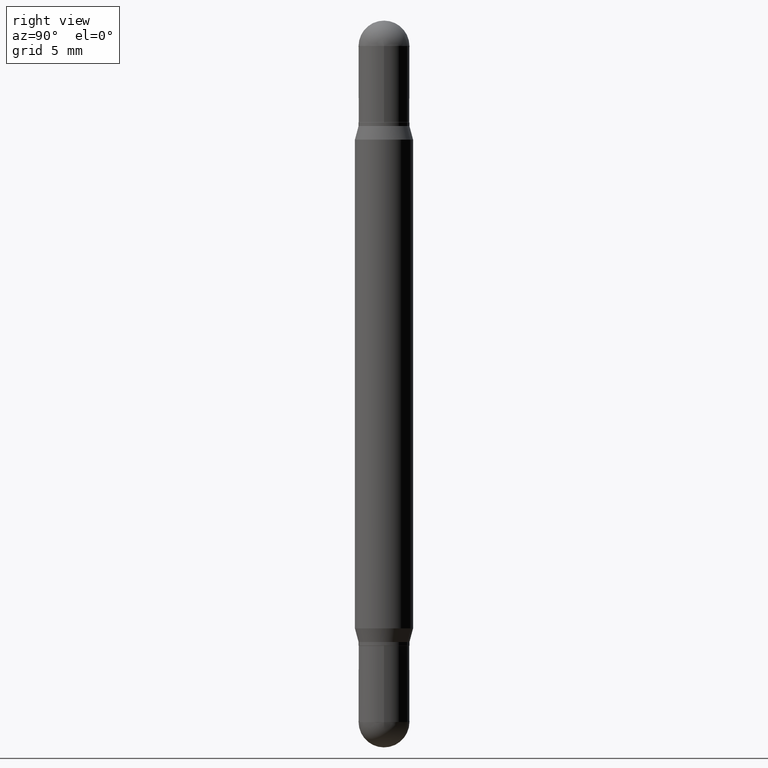
[diagram: clean part render]
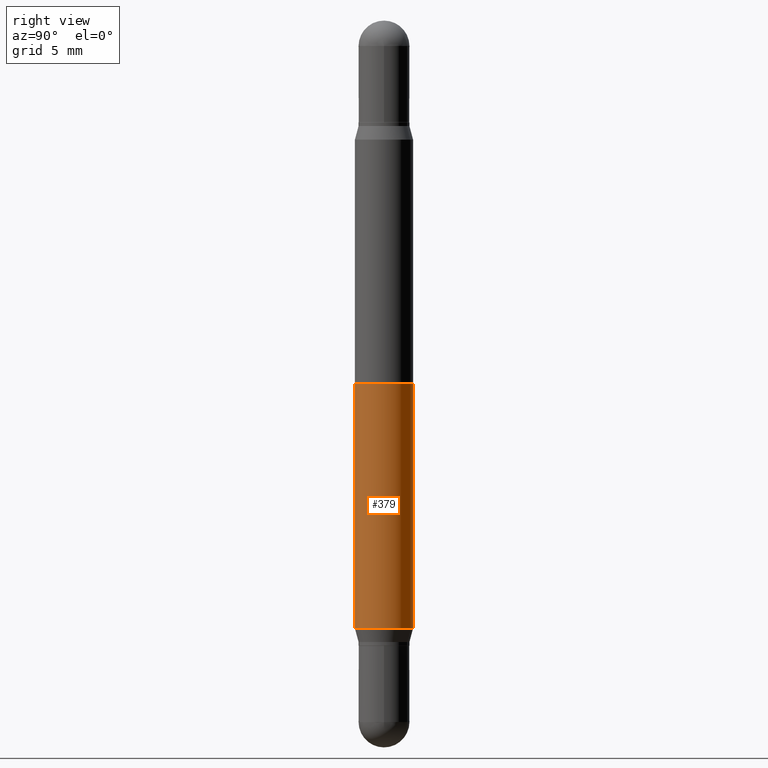
[diagram: same view with one face highlighted and labeled with its STEP entity id]
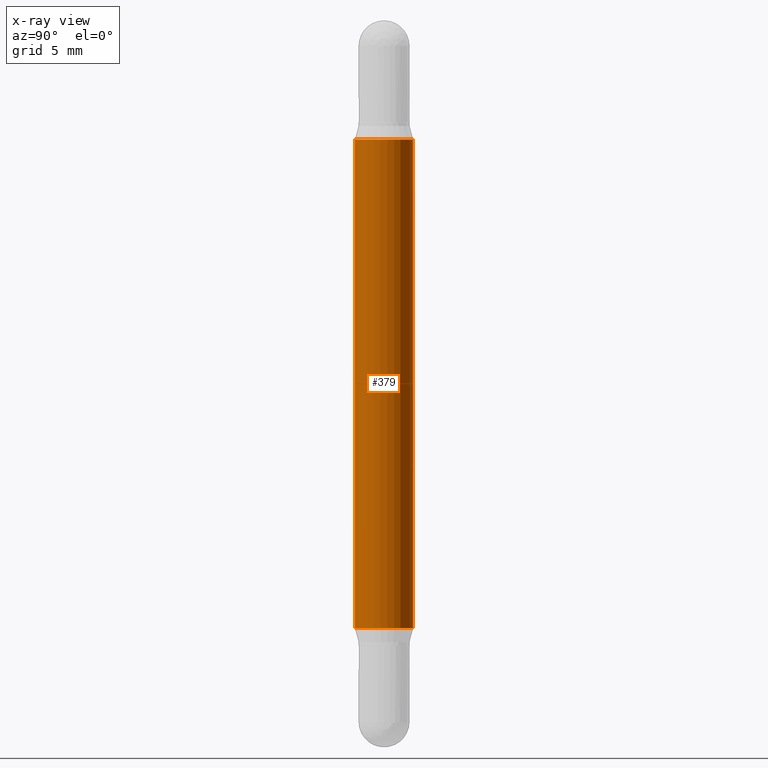
[diagram: x-ray of the same camera — body ghosted, the highlighted face saturated]
A machine part, right view. The second image highlights one B-rep face of the part: STEP entity #379.
The next image is the same camera in x-ray: the body ghosted, the highlighted face saturated — about 0% of this face is hidden behind the body in this view.
In plain terms, the highlighted cylindrical surface (edge-blend (fillet) strip) has radius 2.0002 mm, axis along (-0, -0, -1).
Its self-contained STEP definition (entity closure, byte-faithful):
#52 = CYLINDRICAL_SURFACE ( 'NONE', #63, 0.07875000000000000056 ) ;
#63 = AXIS2_PLACEMENT_3D ( 'NONE', #147, #1079, #656 ) ;
#67 = CARTESIAN_POINT ( 'NONE',  ( 4.026844907845174394E-29, -5.745656530191164860E-15, -1.646139299545446688 ) ) ;
#74 = ORIENTED_EDGE ( 'NONE', *, *, #897, .F. ) ;
#84 = AXIS2_PLACEMENT_3D ( 'NONE', #273, #776, #1037 ) ;
#147 = CARTESIAN_POINT ( 'NONE',  ( 0.000000000000000000, -6.861301046879293370E-15, -1.968500000000000139 ) ) ;
#157 = AXIS2_PLACEMENT_3D ( 'NONE', #67, #422, #759 ) ;
#209 = CIRCLE ( 'NONE', #84, 0.07875000000000000056 ) ;
#245 = CIRCLE ( 'NONE', #157, 0.07875000000000000056 ) ;
#258 = CARTESIAN_POINT ( 'NONE',  ( 5.402642173245321471E-16, 0.07874999999999424127, -1.646139299545446910 ) ) ;
#273 = CARTESIAN_POINT ( 'NONE',  ( 4.026844907845174394E-29, -1.131562810212119252E-15, -0.3223607004545533949 ) ) ;
#280 = EDGE_CURVE ( 'NONE', #509, #662, #650, .T. ) ;
#352 = ORIENTED_EDGE ( 'NONE', *, *, #280, .T. ) ;
#379 = ADVANCED_FACE ( 'NONE', ( #1074 ), #52, .T. ) ;
#382 = VECTOR ( 'NONE', #611, 39.37007874015748143 ) ;
#391 = ORIENTED_EDGE ( 'NONE', *, *, #733, .T. ) ;
#422 = DIRECTION ( 'NONE',  ( -2.446235813067046569E-29, 3.490382941332929587E-15, 1.000000000000000000 ) ) ;
#426 = EDGE_CURVE ( 'NONE', #847, #916, #758, .T. ) ;
#509 = VERTEX_POINT ( 'NONE', #607 ) ;
#570 = VECTOR ( 'NONE', #986, 39.37007874015748143 ) ;
#607 = CARTESIAN_POINT ( 'NONE',  ( -5.499083108677531138E-16, -0.07875000000000112466, -0.3223607004545531174 ) ) ;
#611 = DIRECTION ( 'NONE',  ( -2.446235813067046569E-29, -3.480712864488044250E-15, -1.000000000000000000 ) ) ;
#650 = LINE ( 'NONE', #832, #570 ) ;
#656 = DIRECTION ( 'NONE',  ( -6.982962677686264344E-15, -1.000000000000000000, 3.469013325287953293E-15 ) ) ;
#662 = VERTEX_POINT ( 'NONE', #1076 ) ;
#669 = CARTESIAN_POINT ( 'NONE',  ( 5.402642173245080869E-16, 0.07874999999999313105, -1.968500000000000361 ) ) ;
#733 = EDGE_CURVE ( 'NONE', #662, #916, #245, .T. ) ;
#758 = LINE ( 'NONE', #669, #382 ) ;
#759 = DIRECTION ( 'NONE',  ( -6.982962677686264344E-15, -1.000000000000000000, 3.469013325287953293E-15 ) ) ;
#761 = EDGE_LOOP ( 'NONE', ( #982, #74, #352, #391 ) ) ;
#776 = DIRECTION ( 'NONE',  ( 2.446235813067046569E-29, 3.480712864488044250E-15, 1.000000000000000000 ) ) ;
#832 = CARTESIAN_POINT ( 'NONE',  ( -5.499083108677933457E-16, -0.07875000000000685618, -1.968499999999999694 ) ) ;
#847 = VERTEX_POINT ( 'NONE', #983 ) ;
#897 = EDGE_CURVE ( 'NONE', #509, #847, #209, .T. ) ;
#916 = VERTEX_POINT ( 'NONE', #258 ) ;
#982 = ORIENTED_EDGE ( 'NONE', *, *, #426, .F. ) ;
#983 = CARTESIAN_POINT ( 'NONE',  ( 5.402642173245483188E-16, 0.07874999999999887645, -0.3223607004545536725 ) ) ;
#986 = DIRECTION ( 'NONE',  ( -2.446235813067046569E-29, -3.480712864488044250E-15, -1.000000000000000000 ) ) ;
#1037 = DIRECTION ( 'NONE',  ( -6.982962677686264344E-15, -1.000000000000000000, 3.469013325287953293E-15 ) ) ;
#1074 = FACE_OUTER_BOUND ( 'NONE', #761, .T. ) ;
#1076 = CARTESIAN_POINT ( 'NONE',  ( -5.499083108677531138E-16, -0.07875000000000574596, -1.646139299545446466 ) ) ;
#1079 = DIRECTION ( 'NONE',  ( -2.446235813067046569E-29, -3.480712864488044250E-15, -1.000000000000000000 ) ) ;